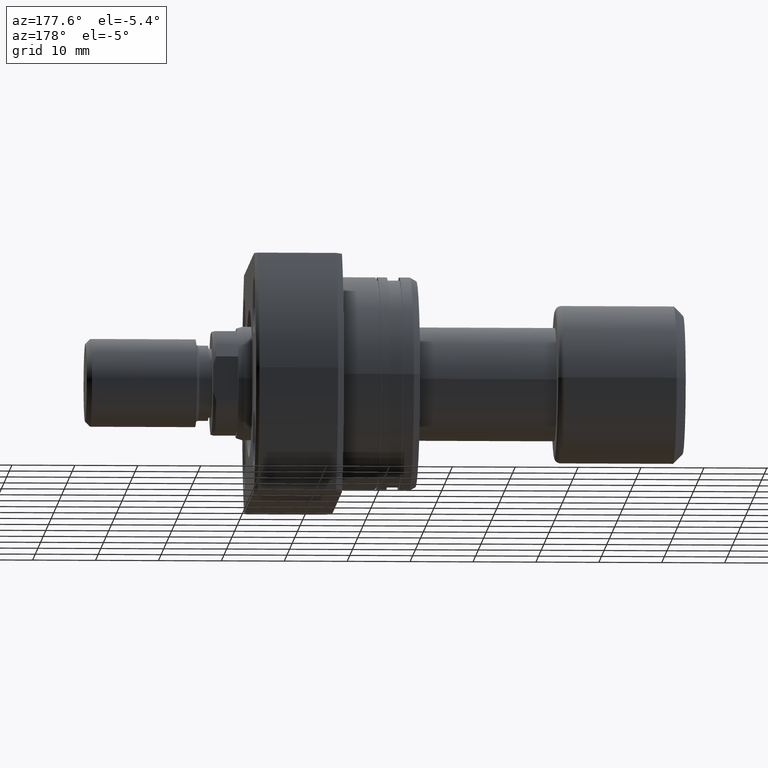
[diagram: clean part render]
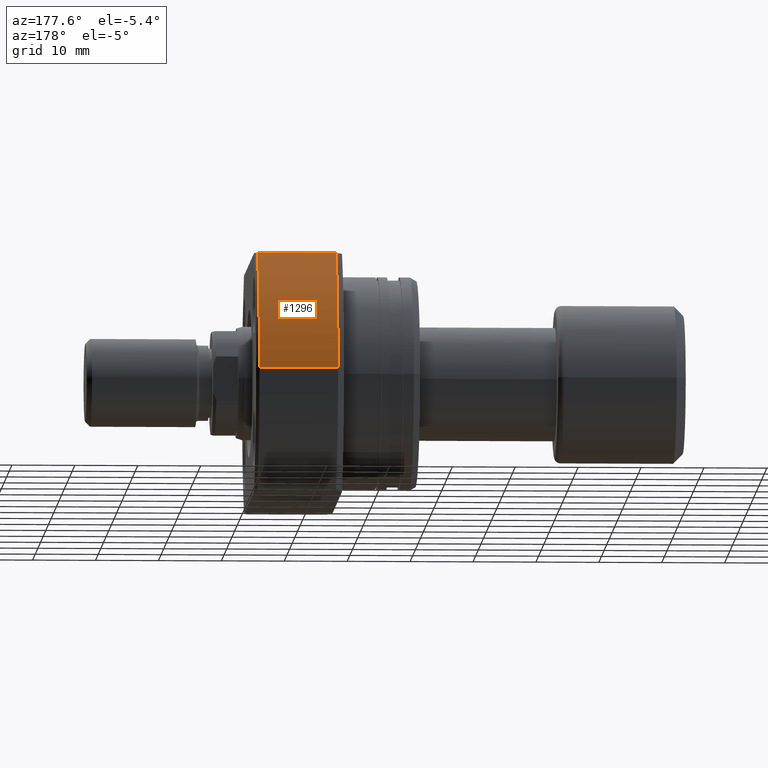
[diagram: same view with one face highlighted and labeled with its STEP entity id]
A machine part, auxiliary view. The second image highlights one B-rep face of the part: STEP entity #1296.
In plain terms, the highlighted cylindrical surface (partial cylindrical patch) has radius 27.5 mm, axis along (1, 0, 0).
Its self-contained STEP definition (entity closure, byte-faithful):
#181 = VERTEX_POINT ( 'NONE', #1788 ) ;
#310 = EDGE_CURVE ( 'NONE', #2066, #794, #1565, .T. ) ;
#332 = ORIENTED_EDGE ( 'NONE', *, *, #310, .F. ) ;
#415 = LINE ( 'NONE', #2077, #1560 ) ;
#503 = DIRECTION ( 'NONE',  ( 1.000000000000000000, 9.242617352055502386E-18, -0.000000000000000000 ) ) ;
#732 = CARTESIAN_POINT ( 'NONE',  ( 26.50000000000000711, 27.49999999999991473, 0.000000000000000000 ) ) ;
#738 = DIRECTION ( 'NONE',  ( 0.000000000000000000, 1.000000000000000000, 0.000000000000000000 ) ) ;
#760 = AXIS2_PLACEMENT_3D ( 'NONE', #2173, #990, #738 ) ;
#794 = VERTEX_POINT ( 'NONE', #2661 ) ;
#914 = DIRECTION ( 'NONE',  ( 0.000000000000000000, 1.000000000000000000, 0.000000000000000000 ) ) ;
#990 = DIRECTION ( 'NONE',  ( 1.000000000000000000, 9.242617352055502386E-18, -0.000000000000000000 ) ) ;
#1251 = CIRCLE ( 'NONE', #1305, 27.49999999999991473 ) ;
#1296 = ADVANCED_FACE ( 'NONE', ( #2418 ), #3540, .T. ) ;
#1305 = AXIS2_PLACEMENT_3D ( 'NONE', #3052, #503, #3625 ) ;
#1430 = EDGE_CURVE ( 'NONE', #794, #181, #1251, .T. ) ;
#1560 = VECTOR ( 'NONE', #1855, 1000.000000000000000 ) ;
#1565 = LINE ( 'NONE', #732, #3379 ) ;
#1788 = CARTESIAN_POINT ( 'NONE',  ( 26.00000000000007461, 19.88089535207092950, 19.00000000000000355 ) ) ;
#1855 = DIRECTION ( 'NONE',  ( 1.000000000000000000, -2.886466111666351885E-14, -0.000000000000000000 ) ) ;
#1963 = ORIENTED_EDGE ( 'NONE', *, *, #3677, .T. ) ;
#1969 = AXIS2_PLACEMENT_3D ( 'NONE', #2596, #3470, #914 ) ;
#2039 = VERTEX_POINT ( 'NONE', #2917 ) ;
#2066 = VERTEX_POINT ( 'NONE', #3533 ) ;
#2073 = ORIENTED_EDGE ( 'NONE', *, *, #2477, .T. ) ;
#2077 = CARTESIAN_POINT ( 'NONE',  ( -2.151057110211240797E-13, 19.88089535207167913, 19.00000000000000355 ) ) ;
#2173 = CARTESIAN_POINT ( 'NONE',  ( 26.50000000000000711, 2.449293598294708880E-16, 0.000000000000000000 ) ) ;
#2280 = ORIENTED_EDGE ( 'NONE', *, *, #1430, .F. ) ;
#2418 = FACE_OUTER_BOUND ( 'NONE', #3072, .T. ) ;
#2477 = EDGE_CURVE ( 'NONE', #2039, #181, #415, .T. ) ;
#2596 = CARTESIAN_POINT ( 'NONE',  ( 13.49999999999999112, 1.247753342527491952E-16, 0.000000000000000000 ) ) ;
#2661 = CARTESIAN_POINT ( 'NONE',  ( 26.00000000000008882, 27.49999999999991473, 0.000000000000000000 ) ) ;
#2917 = CARTESIAN_POINT ( 'NONE',  ( 13.49999999999998757, 19.88089535207129188, 19.00000000000000355 ) ) ;
#3052 = CARTESIAN_POINT ( 'NONE',  ( 26.00000000000008882, 2.403080511534438786E-16, 0.000000000000000000 ) ) ;
#3072 = EDGE_LOOP ( 'NONE', ( #332, #1963, #2073, #2280 ) ) ;
#3221 = DIRECTION ( 'NONE',  ( 1.000000000000000000, 9.242617352055502386E-18, -0.000000000000000000 ) ) ;
#3379 = VECTOR ( 'NONE', #3221, 1000.000000000000000 ) ;
#3470 = DIRECTION ( 'NONE',  ( 1.000000000000000000, 9.242617352055502386E-18, -0.000000000000000000 ) ) ;
#3533 = CARTESIAN_POINT ( 'NONE',  ( 13.49999999999999112, 27.49999999999991473, 0.000000000000000000 ) ) ;
#3540 = CYLINDRICAL_SURFACE ( 'NONE', #760, 27.49999999999991473 ) ;
#3572 = CIRCLE ( 'NONE', #1969, 27.49999999999991473 ) ;
#3625 = DIRECTION ( 'NONE',  ( 0.000000000000000000, 1.000000000000000000, 0.000000000000000000 ) ) ;
#3677 = EDGE_CURVE ( 'NONE', #2066, #2039, #3572, .T. ) ;